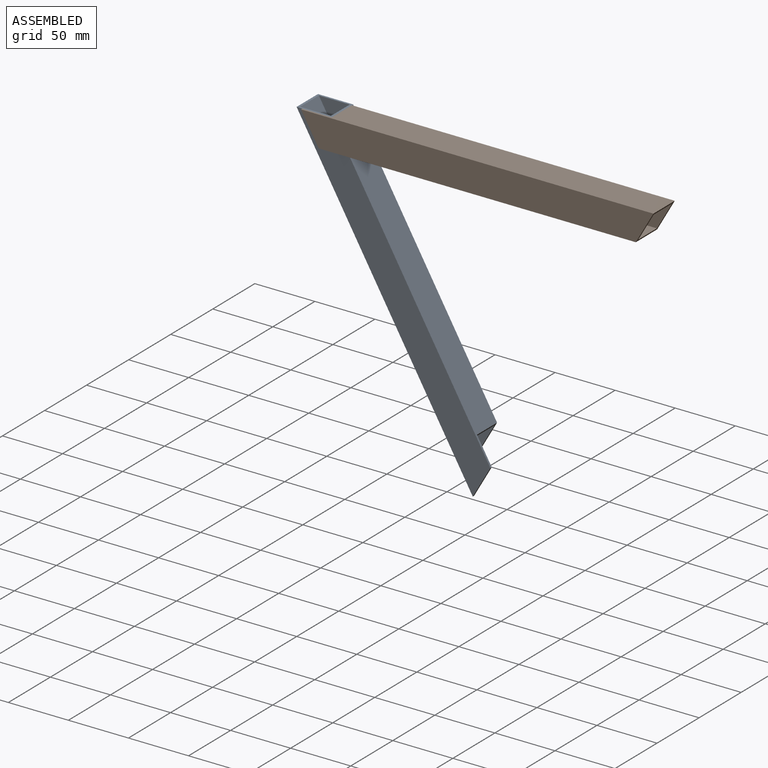
[diagram: assembled view]
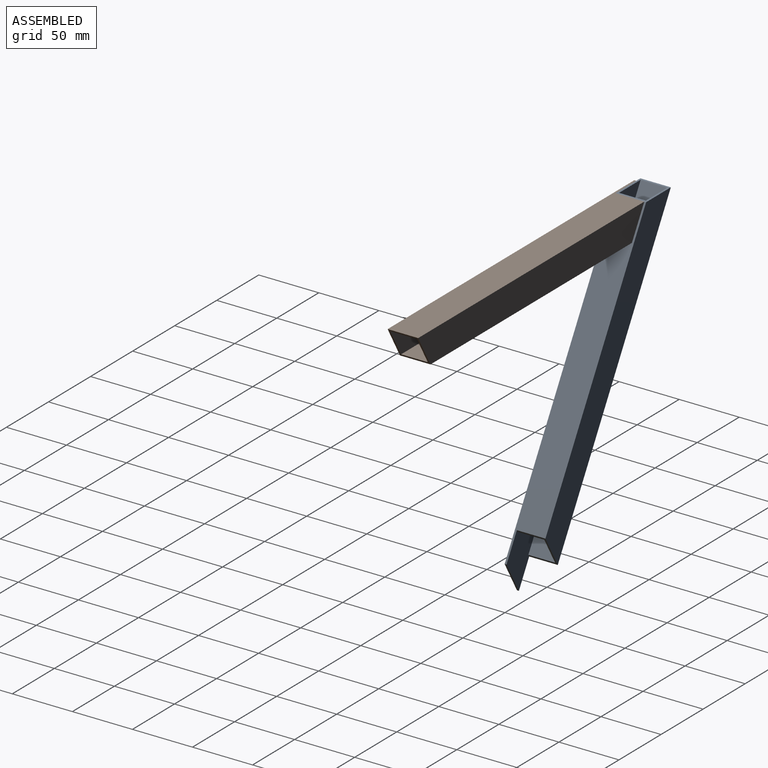
[diagram: assembled view, second angle]
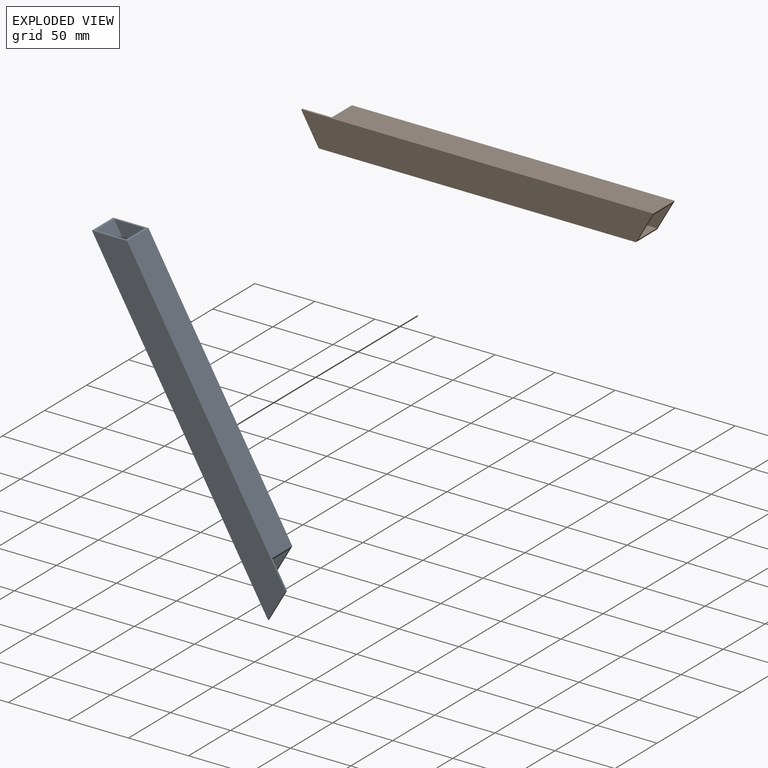
[diagram: exploded view]
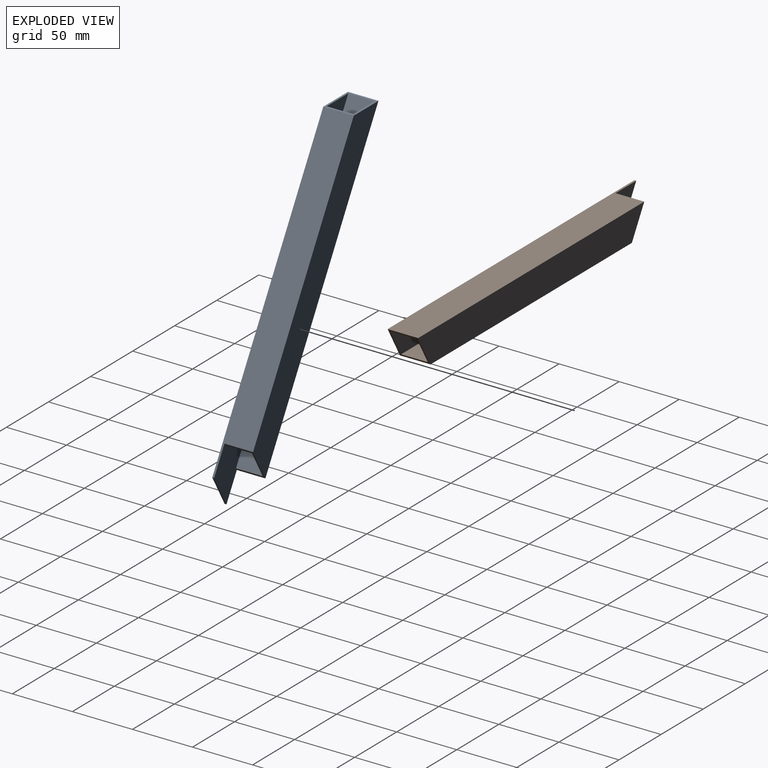
[diagram: exploded view, second angle]
ASSEMBLY  parts=2 mates=3
PART A: 11 faces, bbox 293.3x25.4x25.4 mm
  f0: plane 266.98x22.23mm, normal (0,0,-1), area 5933.6mm2, adj f1,f3,f4,f10
  f1: plane 292.38x25.4mm, normal (0,1,0), area 6270.3mm2, adj f0,f2,f4,f5,f7,f9,f10
  f2: plane 241.31x22.23mm, normal (0,0,1), area 5363.2mm2, adj f1,f3,f4,f10
  f3: plane 266.98x22.23mm, normal (0,-1,0), area 5648.4mm2, adj f0,f2,f4,f10
  f4: plane 25.4x25.4mm, normal (0.87,0,-0.5), area 174.6mm2, adj f0,f1,f2,f3,f6,f7,f8,f9
  f5: plane 25.4x14.66mm, normal (-0.87,0,-0.5), area 46.6mm2, adj f1,f6,f7,f9
  f6: plane 293.29x25.4mm, normal (0,-1,0), area 7077.2mm2, adj f4,f5,f7,f9
  f7: plane 263.96x25.4mm, normal (0,0,-1), area 6121.7mm2, adj f1,f4,f5,f6,f8,f10
  f8: plane 268.81x25.4mm, normal (0,1,0), area 6455.3mm2, adj f4,f7,f9,f10
  f9: plane 293.29x25.4mm, normal (0,0,1), area 6866.7mm2, adj f1,f4,f5,f6,f8,f10
  f10: plane 25.4x23.81mm, normal (-0.87,0,-0.5), area 128mm2, adj f0,f1,f2,f3,f7,f8,f9
PART B: same geometry as A
PLACE A rot(axis=(0,-1,0),120deg) t=(-1.84,-56.6,-74.57)mm
PLACE B t=(-165.63,-58.19,141.33)mm
MATE planar B.f1 <-> A.f6  axis (0,1,0) through (-138.73,-56.6,141.33)mm
MATE planar A.f7 <-> B.f10  axis (0.87,0,0.5) through (-80.86,-43.98,62.3)mm
MATE planar B.f9 <-> A.f4  axis (0,0,1) through (-7.57,-45.55,166.73)mm
